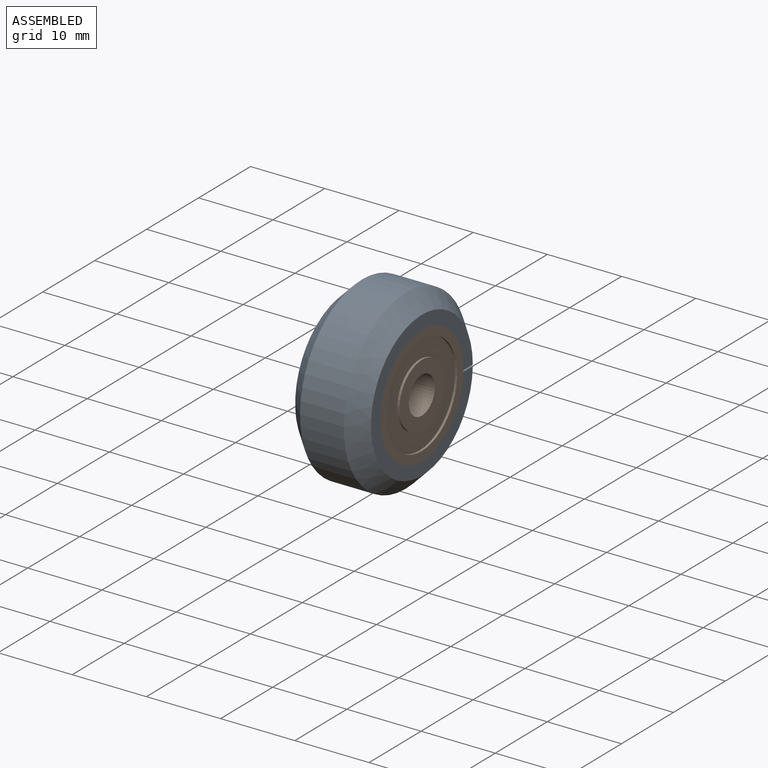
[diagram: assembled view]
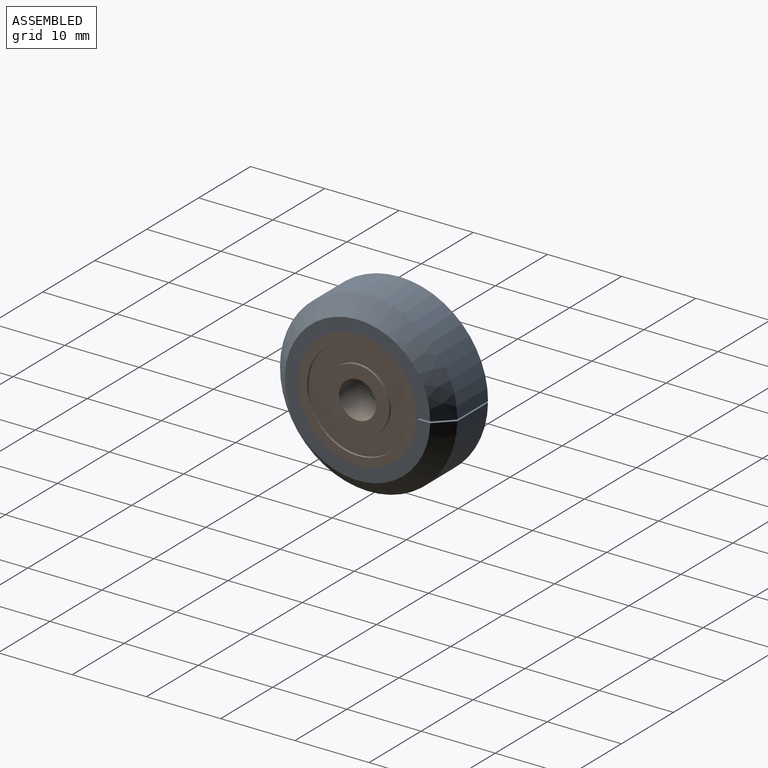
[diagram: assembled view, second angle]
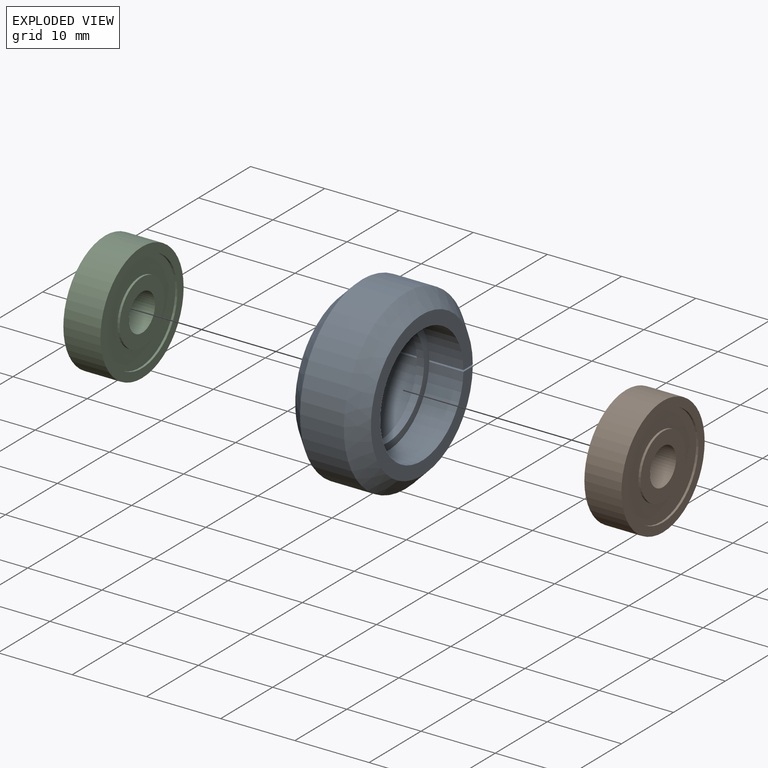
[diagram: exploded view]
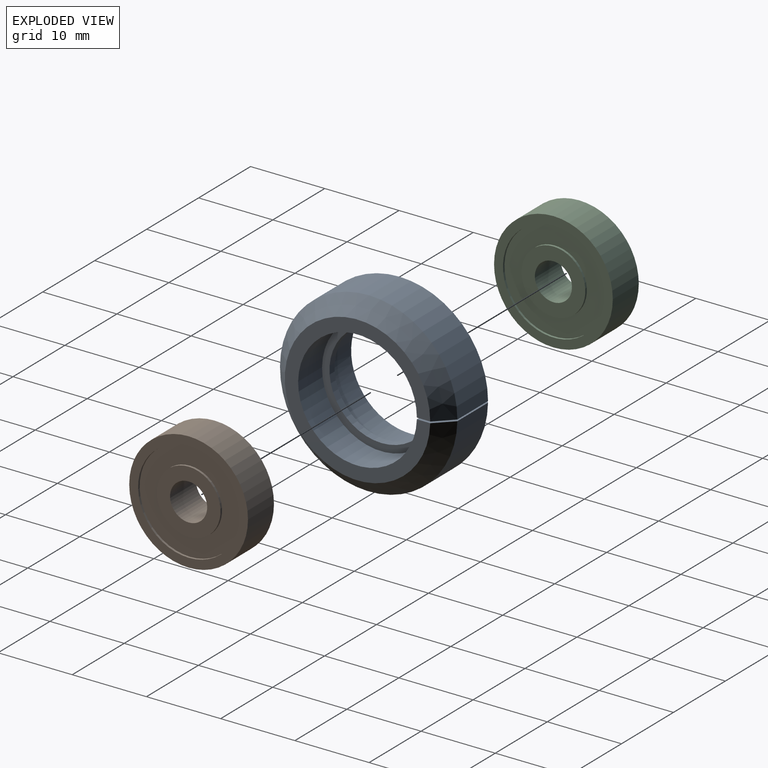
[diagram: exploded view, second angle]
ASSEMBLY  parts=3 mates=2
PART A: 13 faces, bbox 10.2x23.9x23.9 mm
  f0: plane 16x16mm, normal (1,0,0), area 47.1mm2, adj f1,f4,f12
  f1: cylinder r=8mm len=16mm, axis (1,0,0), area 230.3mm2, adj f0,f5,f10,f11
  f2: cylinder r=8mm len=16mm, axis (1,0,0), area 230.3mm2, adj f3,f9,f10,f11
  f3: plane 16.01x16.01mm, normal (-1,0,0), area 47.2mm2, adj f2,f4,f12
  f4: cylinder r=7mm len=14mm, axis (1,0,0), area 44mm2, adj f0,f3
  f5: plane 19.6x19.6mm, normal (1,0,0), area 100.3mm2, adj f1,f6,f10,f11
  f6: cone r=9.8mm half-angle=45deg, axis (-1,0,0), area 207.1mm2, adj f5,f7,f10,f11
  f7: cylinder r=11.95mm len=23.9mm, axis (1,0,0), area 441.8mm2, adj f6,f8,f10,f11
  f8: cone r=11.95mm half-angle=45deg, axis (1,0,0), area 207.1mm2, adj f7,f9,f10,f11
  f9: plane 19.61x19.61mm, normal (-1,0,0), area 100.3mm2, adj f2,f8,f10,f11
  f10: plane 10.2x3.96mm, normal (0,0,1), area 35.7mm2, adj f1,f2,f5,f6,f7,f8,f9,f12
  f11: plane 10.21x3.96mm, normal (0,0,-1), area 35.7mm2, adj f1,f2,f5,f6,f7,f8,f9,f12
  f12: plane 1x0.21mm, normal (0,1,0), area 0.2mm2, adj f0,f3,f10,f11
PART B: 12 faces, bbox 5x16x16 mm
  f0: plane 8.6x8.6mm, normal (-1,0,0), area 38.5mm2, adj f1,f11
  f1: cylinder r=4.3mm len=8.6mm, axis (1,0,0), area 8.1mm2, adj f0,f2
  f2: plane 13.6x13.6mm, normal (-1,0,0), area 87.2mm2, adj f1,f3
  f3: cylinder r=6.8mm len=13.6mm, axis (1,0,0), area 12.8mm2, adj f2,f4
  f4: plane 16x16mm, normal (-1,0,0), area 55.8mm2, adj f3,f5
  f5: cylinder r=8mm len=16mm, axis (1,0,0), area 251.3mm2, adj f4,f6
  f6: plane 16x16mm, normal (1,0,0), area 55.8mm2, adj f5,f7
  f7: cylinder r=6.8mm len=13.6mm, axis (1,0,0), area 12.8mm2, adj f6,f8
  f8: plane 13.6x13.6mm, normal (1,0,0), area 87.2mm2, adj f7,f9
  f9: cylinder r=4.3mm len=8.6mm, axis (1,0,0), area 8.1mm2, adj f8,f10
  f10: plane 8.6x8.6mm, normal (1,0,0), area 38.5mm2, adj f9,f11
  f11: cylinder r=2.5mm len=5mm, axis (1,0,0), area 78.5mm2, adj f0,f10
PART C: same geometry as B
PLACE A at identity
PLACE B t=(2.6,0,0)mm
PLACE C rot(axis=(0,1,0),180deg) t=(-2.6,0,0)mm
MATE fastened B.f1 <-> A.f1  axis (1,0,0) through (5.1,0,0)mm
MATE fastened C.f1 <-> A.f1  axis (-1,0,0) through (-5.1,0,0)mm
